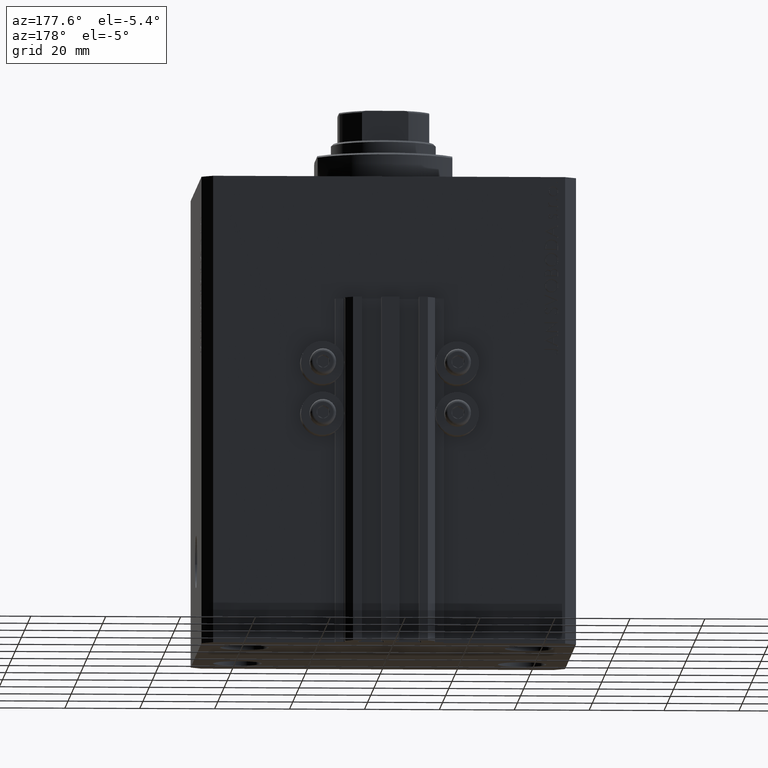
[diagram: clean part render]
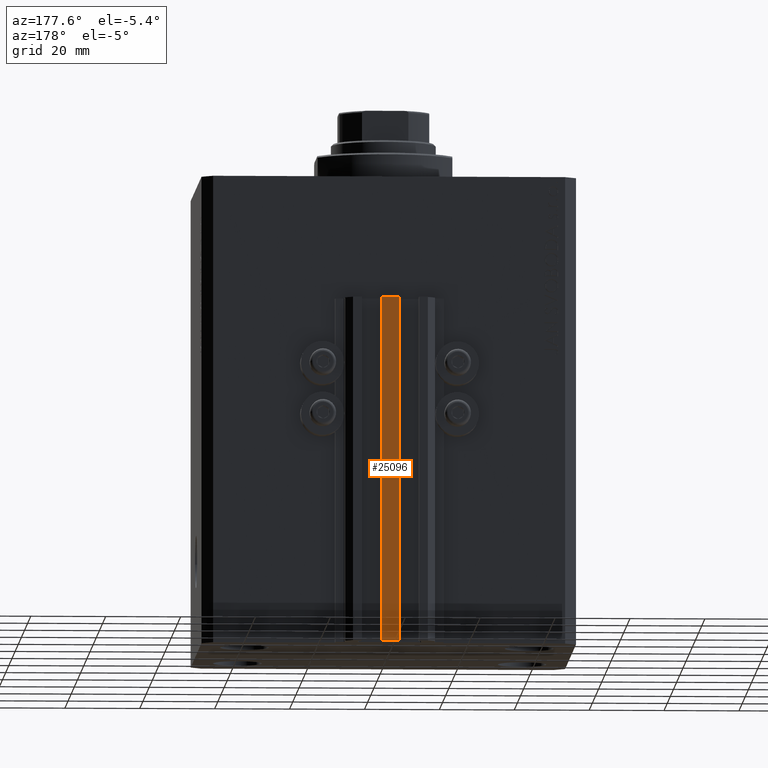
[diagram: same view with one face highlighted and labeled with its STEP entity id]
A machine part, auxiliary view. The second image highlights one B-rep face of the part: STEP entity #25096.
In plain terms, the highlighted planar face has unit normal (0, -1, 0).
Its self-contained STEP definition (entity closure, byte-faithful):
#256 = EDGE_CURVE ( 'NONE', #20666, #38099, #21244, .T. ) ;
#1919 = VECTOR ( 'NONE', #22592, 1000.000000000000000 ) ;
#3369 = CARTESIAN_POINT ( 'NONE',  ( -2.350000000000003642, 45.50000000000000711, -33.00000000000000000 ) ) ;
#3414 = DIRECTION ( 'NONE',  ( 1.000000000000000000, 0.000000000000000000, 0.000000000000000000 ) ) ;
#3585 = DIRECTION ( 'NONE',  ( 0.000000000000000000, -1.000000000000000000, 0.000000000000000000 ) ) ;
#3940 = CARTESIAN_POINT ( 'NONE',  ( 2.349999999999999645, 45.50000000000000711, -33.00000000000000000 ) ) ;
#4583 = CARTESIAN_POINT ( 'NONE',  ( 2.349999999999999645, 45.50000000000000711, -125.0000000000000000 ) ) ;
#4954 = EDGE_CURVE ( 'NONE', #27232, #20666, #28487, .T. ) ;
#6694 = CARTESIAN_POINT ( 'NONE',  ( -2.350000000000003642, 45.50000000000000711, -125.0000000000000000 ) ) ;
#7701 = ORIENTED_EDGE ( 'NONE', *, *, #11416, .T. ) ;
#7736 = VECTOR ( 'NONE', #3414, 1000.000000000000000 ) ;
#8290 = EDGE_CURVE ( 'NONE', #27232, #39525, #46085, .T. ) ;
#10526 = CARTESIAN_POINT ( 'NONE',  ( 2.349999999999999645, 45.50000000000000711, -125.0000000000000000 ) ) ;
#11416 = EDGE_CURVE ( 'NONE', #39525, #38099, #25721, .T. ) ;
#15216 = CARTESIAN_POINT ( 'NONE',  ( -2.350000000000003642, 45.50000000000000711, -33.00000000000000000 ) ) ;
#18147 = DIRECTION ( 'NONE',  ( 0.000000000000000000, -0.000000000000000000, -1.000000000000000000 ) ) ;
#19316 = ORIENTED_EDGE ( 'NONE', *, *, #8290, .T. ) ;
#20666 = VERTEX_POINT ( 'NONE', #4583 ) ;
#21244 = LINE ( 'NONE', #10526, #30604 ) ;
#21474 = PLANE ( 'NONE',  #33316 ) ;
#21539 = CARTESIAN_POINT ( 'NONE',  ( -2.350000000000003642, 45.50000000000000711, -125.0000000000000000 ) ) ;
#22592 = DIRECTION ( 'NONE',  ( 1.000000000000000000, 0.000000000000000000, 0.000000000000000000 ) ) ;
#22619 = ORIENTED_EDGE ( 'NONE', *, *, #256, .F. ) ;
#22999 = EDGE_LOOP ( 'NONE', ( #7701, #22619, #28399, #19316 ) ) ;
#23845 = CARTESIAN_POINT ( 'NONE',  ( -2.350000000000003642, 45.50000000000000711, -125.0000000000000000 ) ) ;
#23886 = CARTESIAN_POINT ( 'NONE',  ( -2.350000000000003642, 45.50000000000000711, -125.0000000000000000 ) ) ;
#25096 = ADVANCED_FACE ( 'NONE', ( #39382 ), #21474, .F. ) ;
#25721 = LINE ( 'NONE', #15216, #1919 ) ;
#27232 = VERTEX_POINT ( 'NONE', #23845 ) ;
#28399 = ORIENTED_EDGE ( 'NONE', *, *, #4954, .F. ) ;
#28487 = LINE ( 'NONE', #21539, #7736 ) ;
#30604 = VECTOR ( 'NONE', #35815, 1000.000000000000000 ) ;
#33316 = AXIS2_PLACEMENT_3D ( 'NONE', #6694, #3585, #18147 ) ;
#33756 = VECTOR ( 'NONE', #42267, 1000.000000000000000 ) ;
#35815 = DIRECTION ( 'NONE',  ( 0.000000000000000000, 0.000000000000000000, 1.000000000000000000 ) ) ;
#38099 = VERTEX_POINT ( 'NONE', #3940 ) ;
#39382 = FACE_OUTER_BOUND ( 'NONE', #22999, .T. ) ;
#39525 = VERTEX_POINT ( 'NONE', #3369 ) ;
#42267 = DIRECTION ( 'NONE',  ( 0.000000000000000000, 0.000000000000000000, 1.000000000000000000 ) ) ;
#46085 = LINE ( 'NONE', #23886, #33756 ) ;